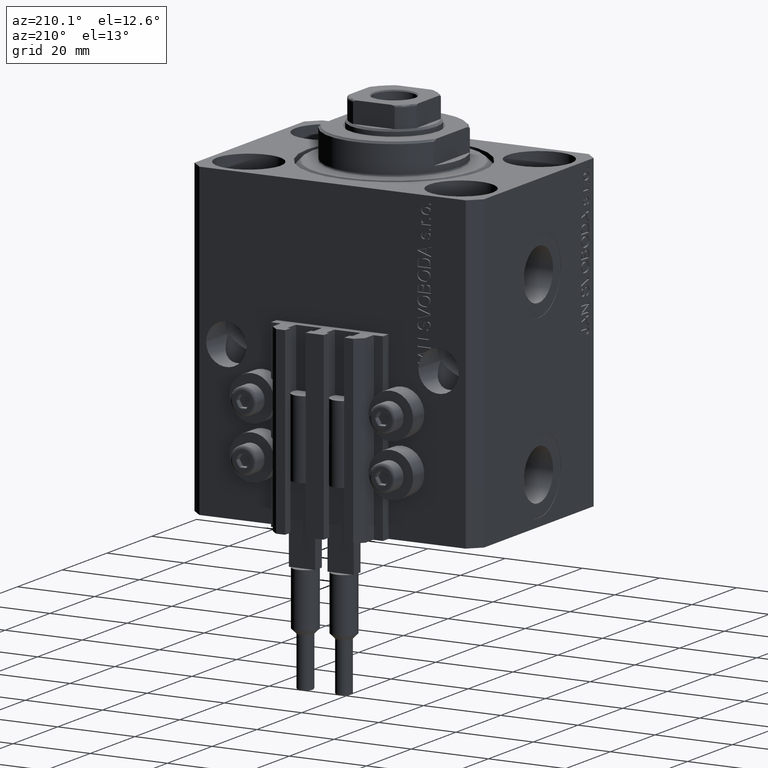
[diagram: clean part render]
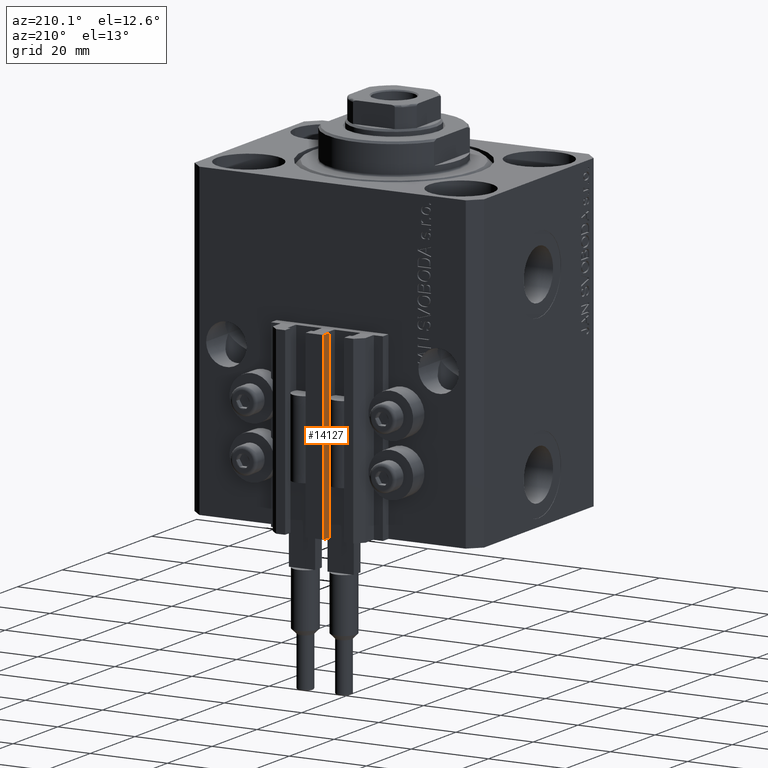
[diagram: same view with one face highlighted and labeled with its STEP entity id]
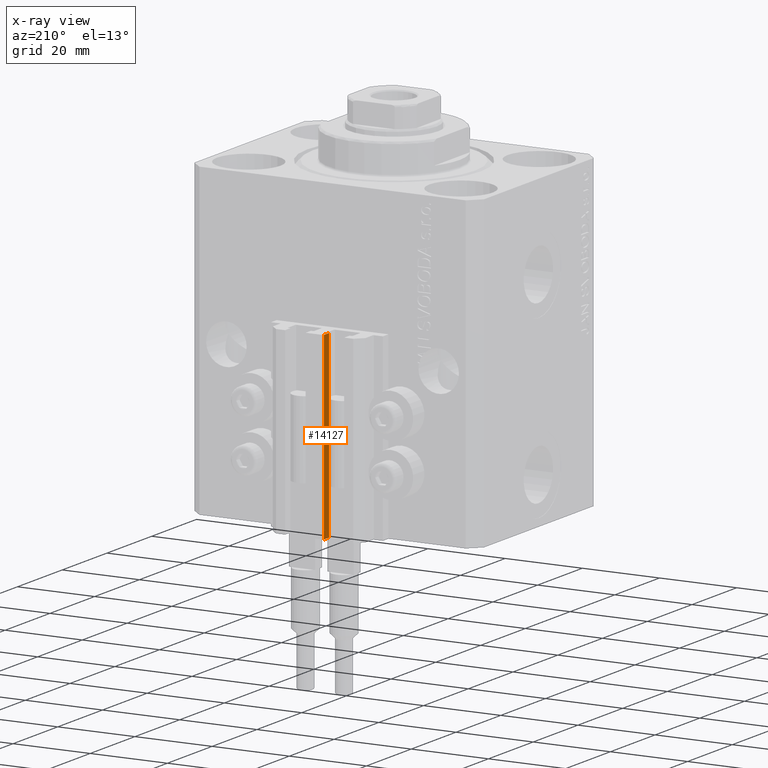
[diagram: x-ray of the same camera — body ghosted, the highlighted face saturated]
A machine part, auxiliary view. The second image highlights one B-rep face of the part: STEP entity #14127.
The next image is the same camera in x-ray: the body ghosted, the highlighted face saturated — about 0% of this face is hidden behind the body in this view.
In plain terms, the highlighted planar face has unit normal (-1, -0, 0).
Its self-contained STEP definition (entity closure, byte-faithful):
#3894 = AXIS2_PLACEMENT_3D ( 'NONE', #24068, #45774, #20905 ) ;
#4865 = LINE ( 'NONE', #24336, #31371 ) ;
#5647 = LINE ( 'NONE', #41803, #19947 ) ;
#6065 = LINE ( 'NONE', #21214, #10680 ) ;
#7228 = CARTESIAN_POINT ( 'NONE',  ( -2.350000000000003642, 35.50000000000001421, -33.00000000000000000 ) ) ;
#7979 = ORIENTED_EDGE ( 'NONE', *, *, #39882, .T. ) ;
#10680 = VECTOR ( 'NONE', #47033, 1000.000000000000000 ) ;
#11241 = DIRECTION ( 'NONE',  ( 1.807003620809174632E-16, -1.000000000000000000, 0.000000000000000000 ) ) ;
#11497 = EDGE_LOOP ( 'NONE', ( #14223, #30814, #7979, #33860 ) ) ;
#11839 = VERTEX_POINT ( 'NONE', #7228 ) ;
#12181 = CARTESIAN_POINT ( 'NONE',  ( -2.350000000000003197, 33.10000000000000853, -33.00000000000000000 ) ) ;
#12226 = VERTEX_POINT ( 'NONE', #12181 ) ;
#14127 = ADVANCED_FACE ( 'NONE', ( #31062 ), #34921, .T. ) ;
#14223 = ORIENTED_EDGE ( 'NONE', *, *, #34285, .F. ) ;
#14854 = LINE ( 'NONE', #17513, #32884 ) ;
#17513 = CARTESIAN_POINT ( 'NONE',  ( -2.350000000000003642, 35.50000000000001421, -33.00000000000000000 ) ) ;
#19947 = VECTOR ( 'NONE', #27095, 1000.000000000000000 ) ;
#20905 = DIRECTION ( 'NONE',  ( 1.807003620809174632E-16, -1.000000000000000000, 0.000000000000000000 ) ) ;
#21214 = CARTESIAN_POINT ( 'NONE',  ( -2.350000000000003642, 35.50000000000001421, -80.00000000000000000 ) ) ;
#24068 = CARTESIAN_POINT ( 'NONE',  ( -2.350000000000003642, 35.50000000000001421, -80.00000000000000000 ) ) ;
#24336 = CARTESIAN_POINT ( 'NONE',  ( -2.350000000000003197, 33.10000000000000853, -80.00000000000000000 ) ) ;
#27095 = DIRECTION ( 'NONE',  ( 0.000000000000000000, 0.000000000000000000, 1.000000000000000000 ) ) ;
#30618 = DIRECTION ( 'NONE',  ( 0.000000000000000000, 0.000000000000000000, 1.000000000000000000 ) ) ;
#30814 = ORIENTED_EDGE ( 'NONE', *, *, #43804, .F. ) ;
#31062 = FACE_OUTER_BOUND ( 'NONE', #11497, .T. ) ;
#31371 = VECTOR ( 'NONE', #30618, 1000.000000000000000 ) ;
#32884 = VECTOR ( 'NONE', #11241, 1000.000000000000000 ) ;
#33860 = ORIENTED_EDGE ( 'NONE', *, *, #34978, .T. ) ;
#34285 = EDGE_CURVE ( 'NONE', #11839, #12226, #14854, .T. ) ;
#34921 = PLANE ( 'NONE',  #3894 ) ;
#34978 = EDGE_CURVE ( 'NONE', #35813, #12226, #4865, .T. ) ;
#35813 = VERTEX_POINT ( 'NONE', #45131 ) ;
#37771 = VERTEX_POINT ( 'NONE', #41071 ) ;
#39882 = EDGE_CURVE ( 'NONE', #37771, #35813, #6065, .T. ) ;
#41071 = CARTESIAN_POINT ( 'NONE',  ( -2.350000000000003642, 35.50000000000001421, -80.00000000000000000 ) ) ;
#41803 = CARTESIAN_POINT ( 'NONE',  ( -2.350000000000003642, 35.50000000000001421, -80.00000000000000000 ) ) ;
#43804 = EDGE_CURVE ( 'NONE', #37771, #11839, #5647, .T. ) ;
#45131 = CARTESIAN_POINT ( 'NONE',  ( -2.350000000000003197, 33.10000000000000853, -80.00000000000000000 ) ) ;
#45774 = DIRECTION ( 'NONE',  ( -1.000000000000000000, -1.807003620809174632E-16, 0.000000000000000000 ) ) ;
#47033 = DIRECTION ( 'NONE',  ( 1.807003620809174632E-16, -1.000000000000000000, 0.000000000000000000 ) ) ;